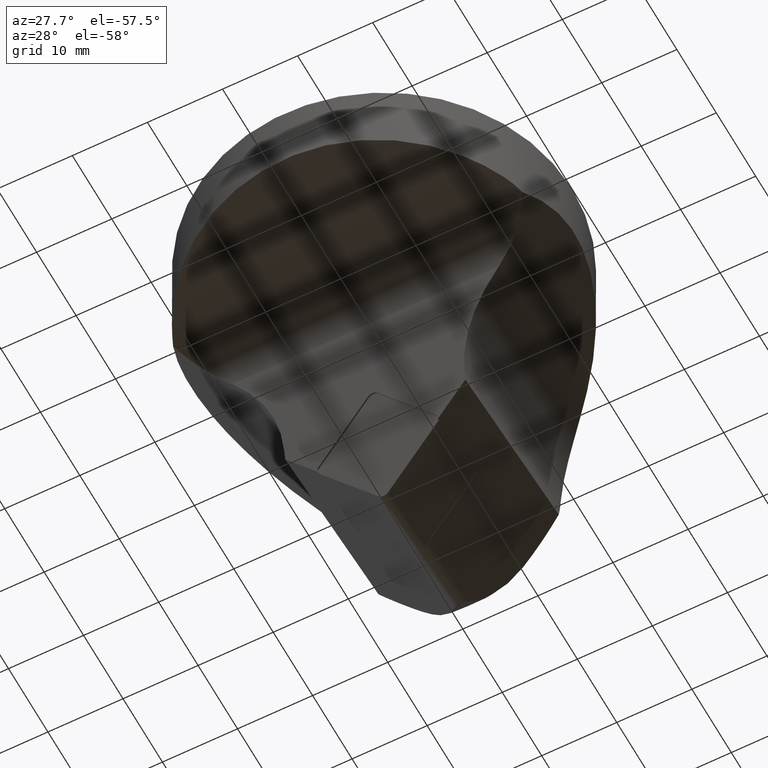
[diagram: clean part render]
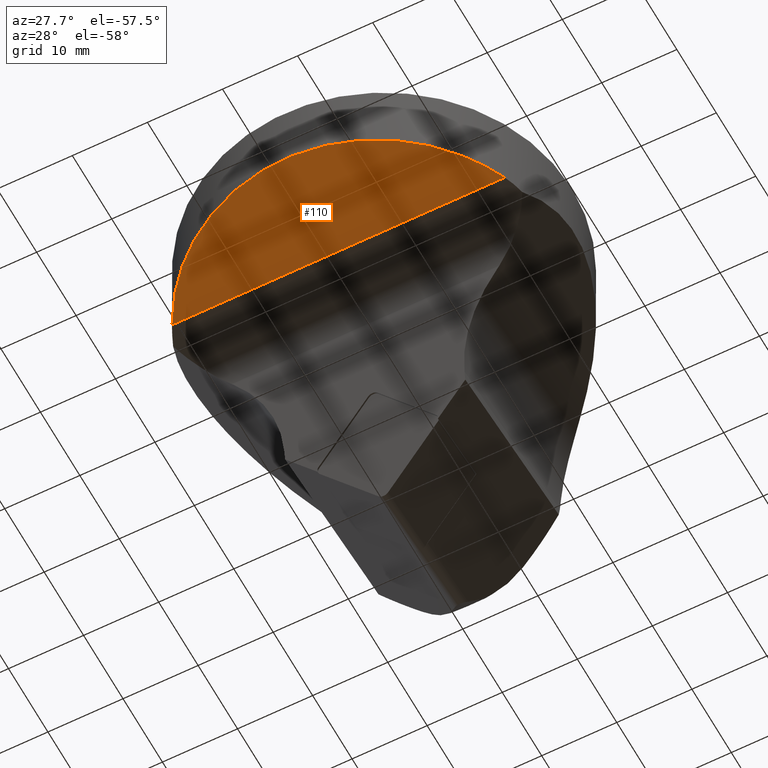
[diagram: same view with one face highlighted and labeled with its STEP entity id]
A machine part, auxiliary view. The second image highlights one B-rep face of the part: STEP entity #110.
In plain terms, the highlighted planar face has unit normal (-0, 0.1219, 0.9925).
Its self-contained STEP definition (entity closure, byte-faithful):
#110=ADVANCED_FACE('',(#184),#185,.F.);
#184=FACE_OUTER_BOUND('',#259,.T.);
#185=PLANE('',#260);
#259=EDGE_LOOP('',(#559,#560));
#260=AXIS2_PLACEMENT_3D('',#561,#562,#563);
#559=ORIENTED_EDGE('',*,*,#659,.F.);
#560=ORIENTED_EDGE('',*,*,#645,.F.);
#561=CARTESIAN_POINT('',(-8.467113965222E-014,-56.3398642472671,-6.1541683519562));
#562=DIRECTION('',(-1.57859836313889E-016,0.121869343405147,0.992546151641322));
#563=DIRECTION('',(1.0,0.0,1.59045336131569E-016));
#645=EDGE_CURVE('',#793,#795,#796,.T.);
#659=EDGE_CURVE('',#795,#793,#820,.T.);
#793=VERTEX_POINT('',#1100);
#795=VERTEX_POINT('',#1109);
#796=LINE('',#1110,#1111);
#820=ELLIPSE('',#1178,25.1877456364712,25.0);
#1100=CARTESIAN_POINT('',(22.1566487445034,-11.5794177924754,-11.6500601157258));
#1109=CARTESIAN_POINT('',(-22.1566487445034,-11.5794177924754,-11.6500601157258));
#1110=CARTESIAN_POINT('',(22.1566487445034,-11.5794177924754,-11.6500601157258));
#1111=VECTOR('',#1352,44.3132974890068);
#1178=AXIS2_PLACEMENT_3D('',#1377,#1378,#1379);
#1352=DIRECTION('',(-1.0,0.0,0.0));
#1377=CARTESIAN_POINT('',(-6.61433067666888E-015,-5.56823014031484E-015,-13.0718338448862));
#1378=DIRECTION('',(-1.0355995739675E-016,0.121869343405148,0.992546151641322));
#1379=DIRECTION('',(1.59613594730379E-016,-0.992546151641322,0.121869343405148));